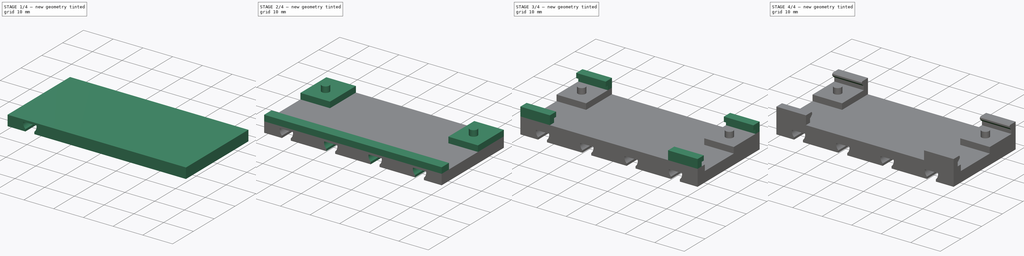
[diagram: build sequence overview — one tinted view per stage of 4, left to right]
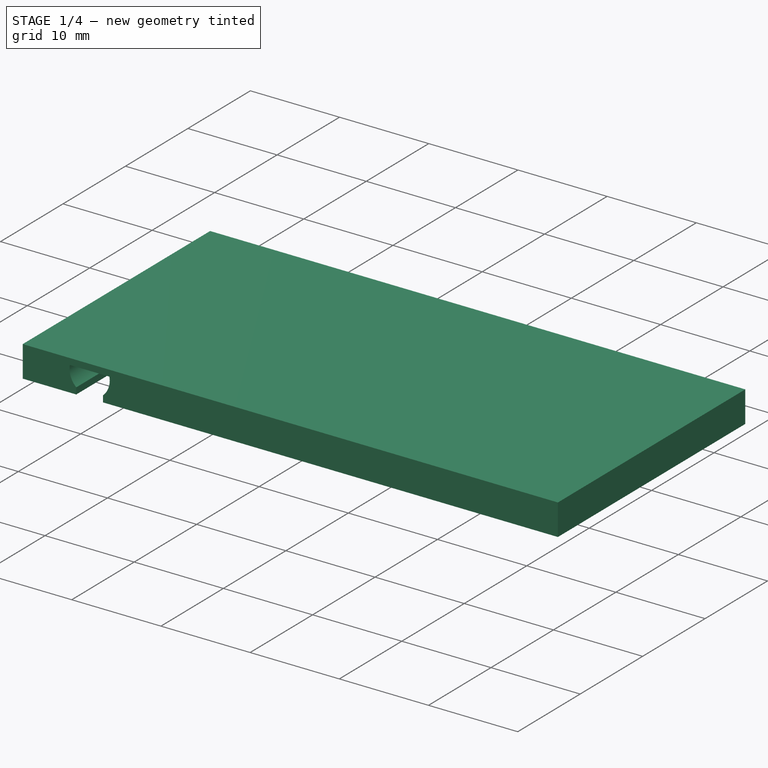
[diagram: stage 1 of 4 — iso view after this stage's code; geometry added in this stage tinted green]
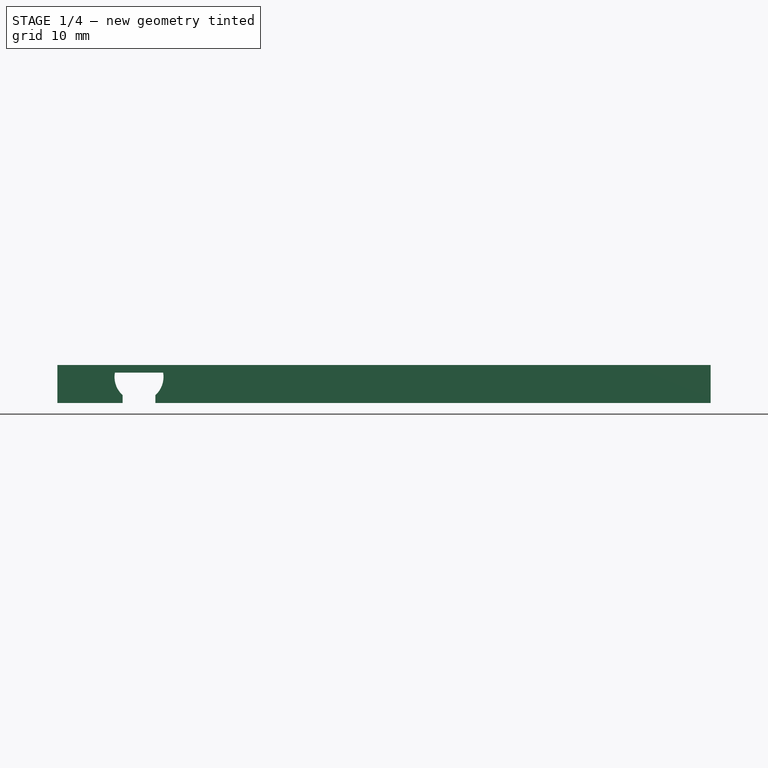
[diagram: stage 1 of 4 — front view after this stage's code; geometry added in this stage tinted green]
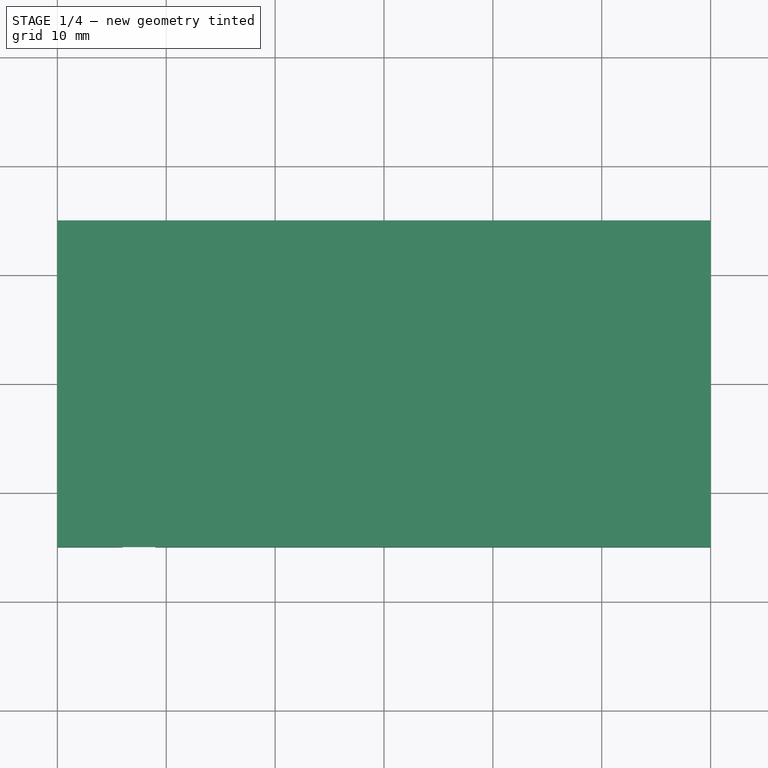
[diagram: stage 1 of 4 — top view after this stage's code; geometry added in this stage tinted green]
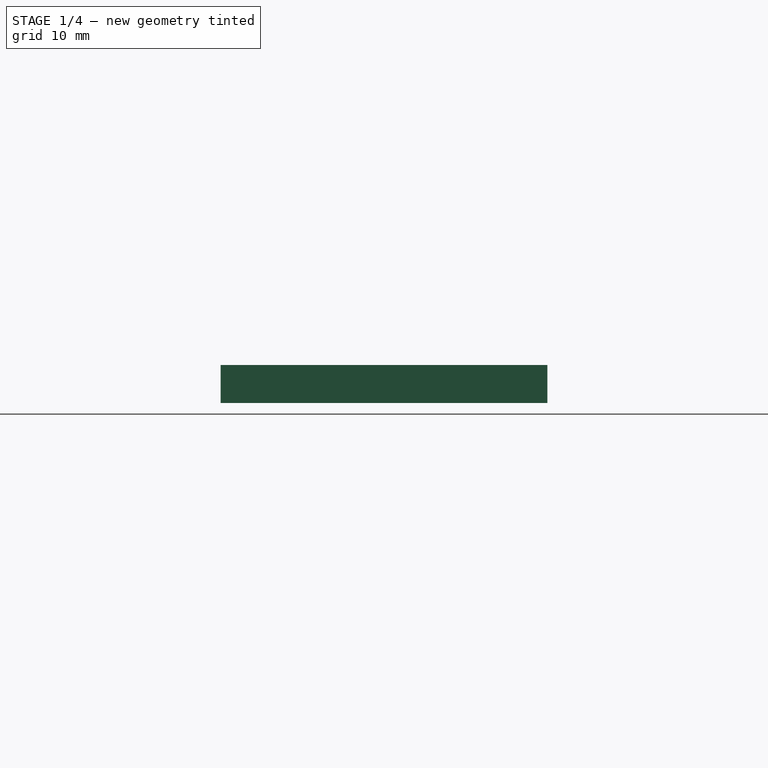
[diagram: stage 1 of 4 — right view after this stage's code; geometry added in this stage tinted green]
FCSTD DOCUMENT  (FreeCAD 0.17R13522 (Git))
Label: breakout_base
License: All rights reserved
LicenseURL: http://en.wikipedia.org/wiki/All_rights_reserved
objects: Sketcher::SketchObject×6, PartDesign::Pad×5, PartDesign::Mirrored×2, PartDesign::Chamfer×2, PartDesign::Pocket×1, PartDesign::LinearPattern×1, PartDesign::MultiTransform×1, PartDesign::Body×1
note: 25 computed .brp shape members not serialized (recipe doc carries the construction recipe); baked Part::Feature solids carry a one-line shape summary decoded from their .brp

FEATURE [Sketcher::SketchObject] Sketch
  MapMode = 5
  Support = -> [XY_Plane]
  sketch-geometry (4):
    g0: LineSegment StartX=-30 StartY=15 StartZ=0 EndX=30 EndY=15 EndZ=0
    g1: LineSegment StartX=30 StartY=15 StartZ=0 EndX=30 EndY=-15 EndZ=0
    g2: LineSegment StartX=30 StartY=-15 StartZ=0 EndX=-30 EndY=-15 EndZ=0
    g3: LineSegment StartX=-30 StartY=-15 StartZ=0 EndX=-30 EndY=15 EndZ=0
  constraints (12):
    c: Coincident(g0,g1)
    c: Coincident(g1,g2)
    c: Coincident(g2,g3)
    c: Coincident(g3,g0)
    c: Horizontal(g0)
    c: Horizontal(g2)
    c: Vertical(g1)
    c: Vertical(g3)
    c: Symmetric(g0,g0,g-2)
    c: Symmetric(g0,g2,g-1)
    c: DistanceY(g3,g3) = 30
    c: DistanceX(g0,g0) = 60
FEATURE [PartDesign::Pad] Pad
  Length = 3.5
  Length2 = 100
  Profile = -> Sketch
  Type = 0
FEATURE [Sketcher::SketchObject] Sketch001
  MapMode = 5
  Placement = pos=(0,-15,0) rot=(1,0,0;1.5708rad)
  Support = -> [Pad]
  sketch-geometry (8):
    g0: LineSegment StartX=-24 StartY=0.722949 StartZ=0 EndX=-24 EndY=0 EndZ=0
    g1: LineSegment StartX=-24 StartY=0 StartZ=0 EndX=-21 EndY=0 EndZ=0
    g2: LineSegment StartX=-21 StartY=0 StartZ=0 EndX=-21 EndY=0.722949 EndZ=0
    g3: ArcOfCircle CenterX=-22.5 CenterY=2.4 CenterZ=0 NormalX=0 NormalY=0 NormalZ=1 AngleXU=0 Radius=2.25 StartAngle=2.96286 EndAngle=3.98266
    g4: ArcOfCircle CenterX=-22.5 CenterY=2.4 CenterZ=0 NormalX=0 NormalY=0 NormalZ=1 AngleXU=0 Radius=2.25 StartAngle=5.44212 EndAngle=6.46191
    g5: LineSegment StartX=-24.7142 StartY=2.8 StartZ=0 EndX=-20.2858 EndY=2.8 EndZ=0
    g6: GeomPoint X=-22.5 Y=0 Z=0
    g7: LineSegment [constr] StartX=-22.5 StartY=2.4 StartZ=0 EndX=-22.5 EndY=0 EndZ=0
  constraints (23):
    c: Vertical(g0)
    c: Coincident(g0,g1)
    c: Horizontal(g1)
    c: Coincident(g1,g2)
    c: Coincident(g3,g0)
    c: Coincident(g4,g3)
    c: Coincident(g4,g2)
    c: Coincident(g5,g3)
    c: Coincident(g5,g4)
    c: Horizontal(g5)
    c: Vertical(g2)
    c: Radius(g4) = 2.25
    c: Equal(g4,g3)
    c: DistanceX(g1,g1) = 3
    c: PointOnObject(g6,g1)
    c: Symmetric(g0,g1,g6)
    c: PointOnObject(g6,g-1)
    c: Coincident(g7,g3)
    c: Coincident(g7,g6)
    c: Vertical(g7)
    c: DistanceY(g7,g7) = 2.4
    c: DistanceY(g0,g3) = 2.8
    c: DistanceX(g6,g-1) = 22.5
FEATURE [PartDesign::Pocket] Pocket
  BaseFeature = -> Pad
  Length = 5
  Length2 = 100
  Profile = -> Sketch001
  Type = 1
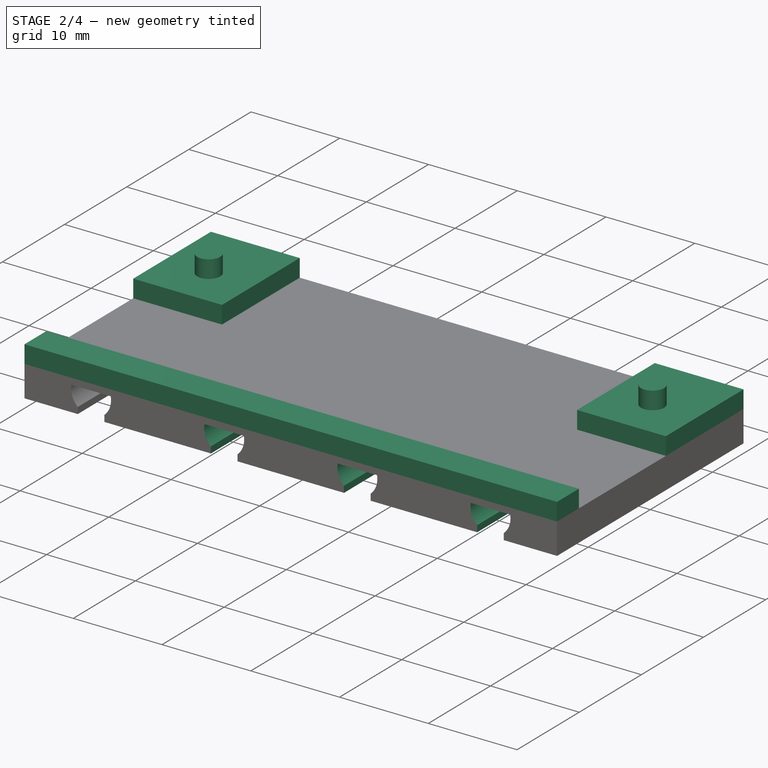
[diagram: stage 2 of 4 — iso view after this stage's code; geometry added in this stage tinted green]
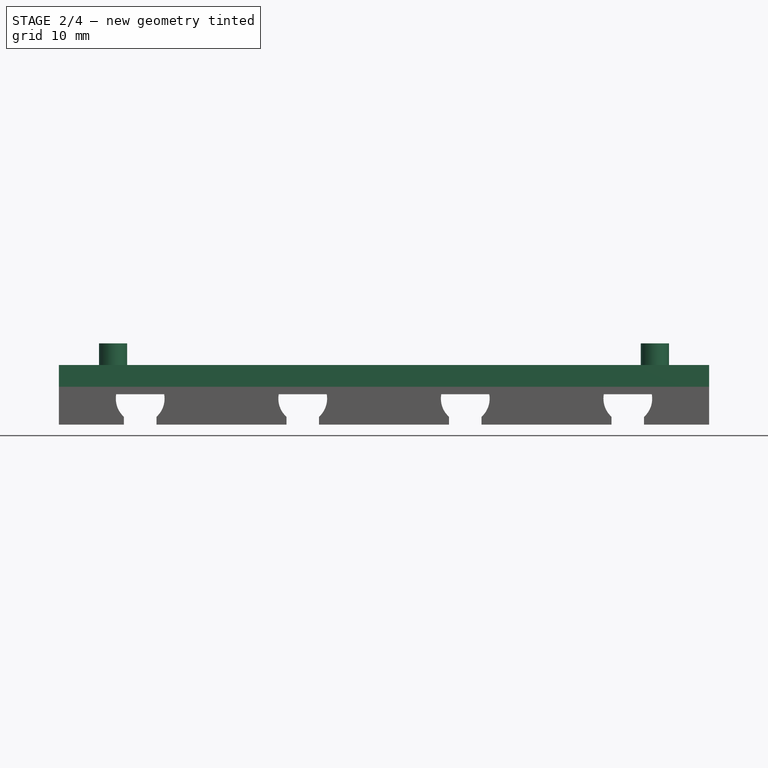
[diagram: stage 2 of 4 — front view after this stage's code; geometry added in this stage tinted green]
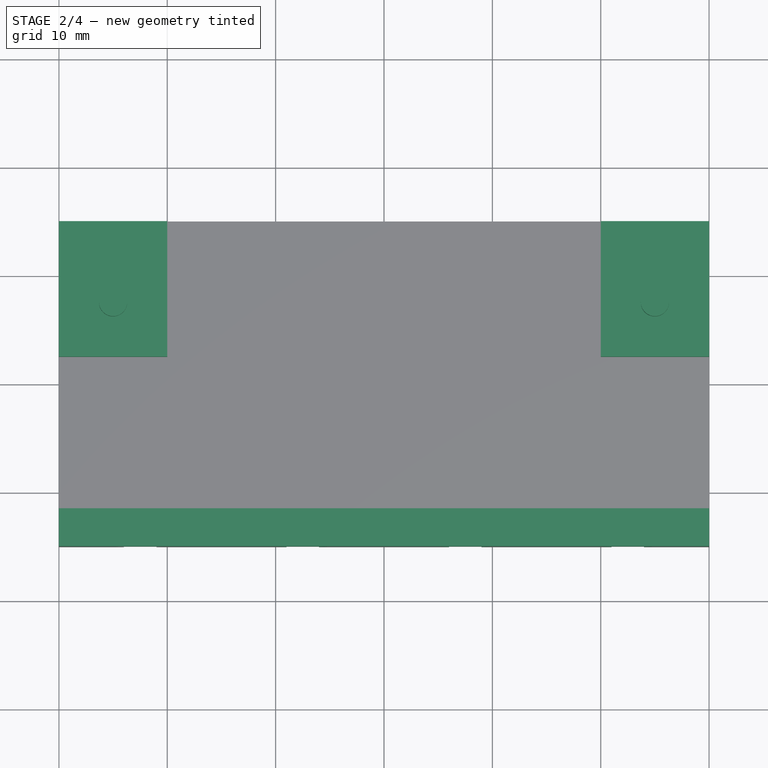
[diagram: stage 2 of 4 — top view after this stage's code; geometry added in this stage tinted green]
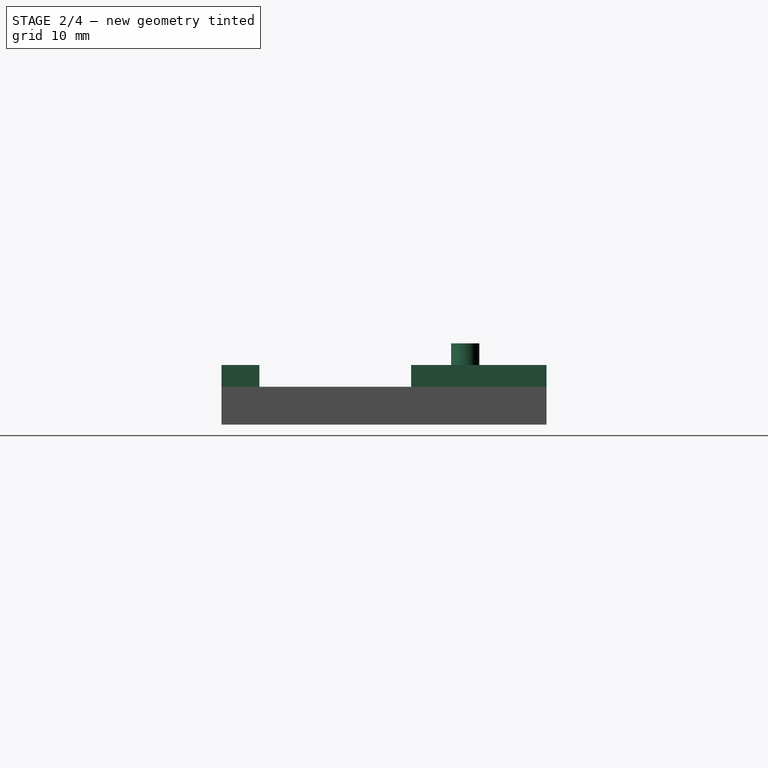
[diagram: stage 2 of 4 — right view after this stage's code; geometry added in this stage tinted green]
FEATURE [PartDesign::LinearPattern] LinearPattern
  BaseFeature = -> Pocket
  Direction = -> Sketch001 [H_Axis]
  Length = 45
  Occurrences = 4
  Originals = -> [Pocket]
FEATURE [Sketcher::SketchObject] Sketch002
  MapMode = 5
  Placement = pos=(0,0,3.5) rot=(0,0,1;0rad)
  Support = -> [LinearPattern]
  sketch-geometry (15):
    g0: LineSegment StartX=-30 StartY=15 StartZ=0 EndX=-20 EndY=15 EndZ=0
    g1: LineSegment StartX=-20 StartY=15 StartZ=0 EndX=-20 EndY=2.5 EndZ=0
    g2: LineSegment StartX=-20 StartY=2.5 StartZ=0 EndX=-30 EndY=2.5 EndZ=0
    g3: LineSegment StartX=-30 StartY=2.5 StartZ=0 EndX=-30 EndY=15 EndZ=0
    g4: LineSegment StartX=-30 StartY=-11.5 StartZ=0 EndX=30 EndY=-11.5 EndZ=0
    g5: LineSegment StartX=30 StartY=-11.5 StartZ=0 EndX=30 EndY=-15 EndZ=0
    g6: LineSegment StartX=30 StartY=-15 StartZ=0 EndX=-30 EndY=-15 EndZ=0
    g7: LineSegment StartX=-30 StartY=-15 StartZ=0 EndX=-30 EndY=-11.5 EndZ=0
    g8: LineSegment StartX=20 StartY=15 StartZ=0 EndX=30 EndY=15 EndZ=0
    g9: LineSegment StartX=30 StartY=15 StartZ=0 EndX=30 EndY=2.5 EndZ=0
    g10: LineSegment StartX=30 StartY=2.5 StartZ=0 EndX=20 EndY=2.5 EndZ=0
    g11: LineSegment StartX=20 StartY=2.5 StartZ=0 EndX=20 EndY=15 EndZ=0
    g12: LineSegment [constr] StartX=-20 StartY=15 StartZ=0 EndX=20 EndY=15 EndZ=0
    g13: LineSegment [constr] StartX=-20 StartY=2.5 StartZ=0 EndX=20 EndY=2.5 EndZ=0
    g14: LineSegment [constr] StartX=30 StartY=2.5 StartZ=0 EndX=30 EndY=-11.5 EndZ=0
  constraints (41):
    c: Coincident(g0,g1)
    c: Coincident(g1,g2)
    c: Coincident(g2,g3)
    c: Coincident(g3,g0)
    c: Horizontal(g0)
    c: Horizontal(g2)
    c: Vertical(g1)
    c: Vertical(g3)
    c: Coincident(g4,g5)
    c: Coincident(g5,g6)
    c: Coincident(g6,g7)
    c: Coincident(g7,g4)
    c: Horizontal(g4)
    c: Horizontal(g6)
    c: Vertical(g5)
    c: Vertical(g7)
    c: Coincident(g8,g9)
    c: Coincident(g9,g10)
    c: Coincident(g10,g11)
    c: Coincident(g11,g8)
    c: Horizontal(g8)
    c: Horizontal(g10)
    c: Vertical(g9)
    c: Vertical(g11)
    c: Symmetric(g6,g5,g-2)
    c: Symmetric(g6,g0,g-1)
    c: Coincident(g12,g0)
    c: Coincident(g12,g8)
    c: Horizontal(g12)
    c: Coincident(g13,g1)
    c: Coincident(g13,g10)
    c: Horizontal(g13)
    c: Symmetric(g0,g8,g-2)
    c: DistanceY(g6,g0) = 30
    c: DistanceX(g0,g8) = 60
    c: Coincident(g14,g9)
    c: Coincident(g14,g4)
    c: Vertical(g14)
    c: DistanceY(g3,g3) = 12.5
    c: DistanceX(g0,g0) = 10
    c: DistanceY(g7,g7) = 3.5
FEATURE [PartDesign::Pad] Pad001
  BaseFeature = -> LinearPattern
  Length = 2
  Length2 = 100
  Profile = -> Sketch002
  Type = 0
FEATURE [Sketcher::SketchObject] Sketch003
  MapMode = 5
  Placement = pos=(0,0,5.5) rot=(0,0,1;0rad)
  Support = -> [Pad001]
  sketch-geometry (2):
    g0: Circle CenterX=-25 CenterY=7.5 CenterZ=0 NormalX=0 NormalY=0 NormalZ=1 AngleXU=0 Radius=1.3
    g1: Circle CenterX=25 CenterY=7.5 CenterZ=0 NormalX=0 NormalY=0 NormalZ=1 AngleXU=0 Radius=1.3
  constraints (5):
    c: Radius(g0) = 1.3
    c: Equal(g0,g1)
    c: Symmetric(g0,g1,g-2)
    c: DistanceX(g0,g-1) = 25
    c: DistanceY(g-1,g0) = 7.5
FEATURE [PartDesign::Pad] Pad002
  BaseFeature = -> Pad001
  Length = 2
  Length2 = 100
  Profile = -> Sketch003
  Type = 0
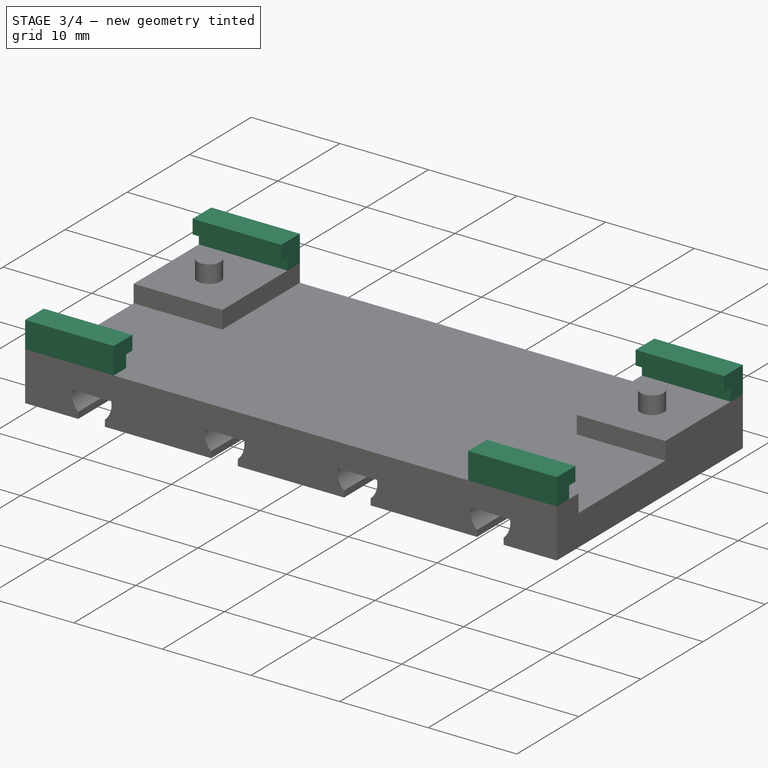
[diagram: stage 3 of 4 — iso view after this stage's code; geometry added in this stage tinted green]
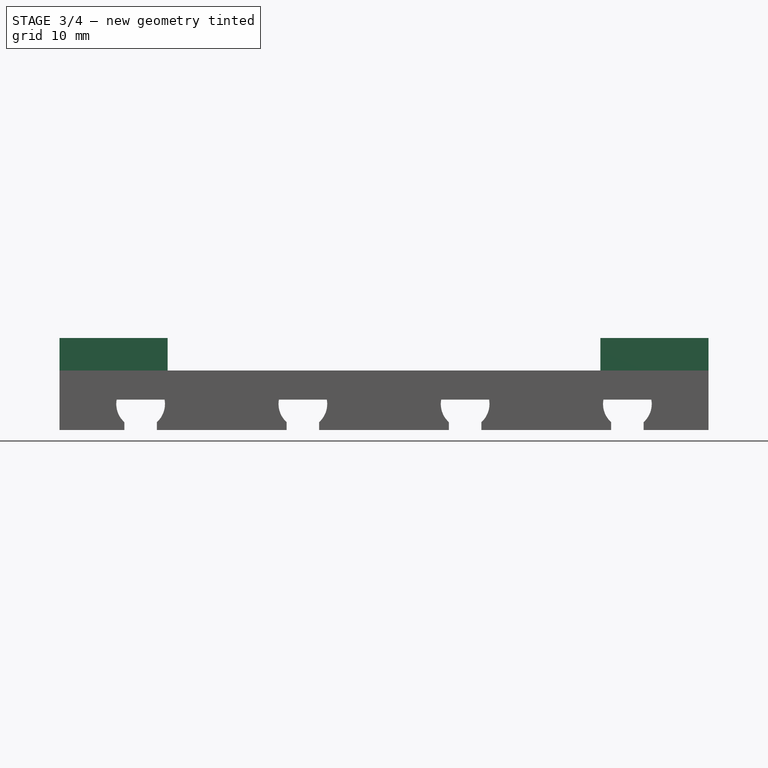
[diagram: stage 3 of 4 — front view after this stage's code; geometry added in this stage tinted green]
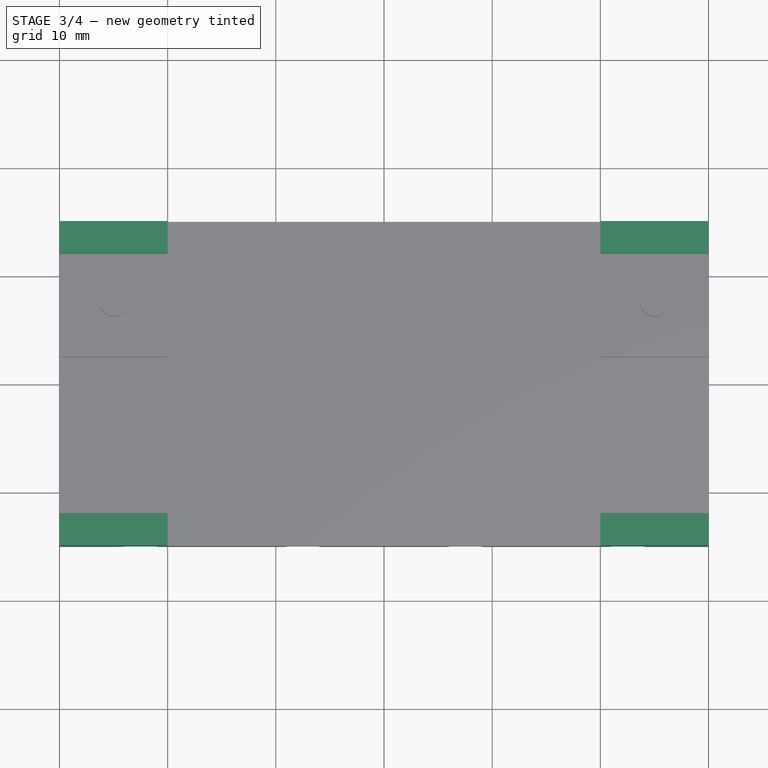
[diagram: stage 3 of 4 — top view after this stage's code; geometry added in this stage tinted green]
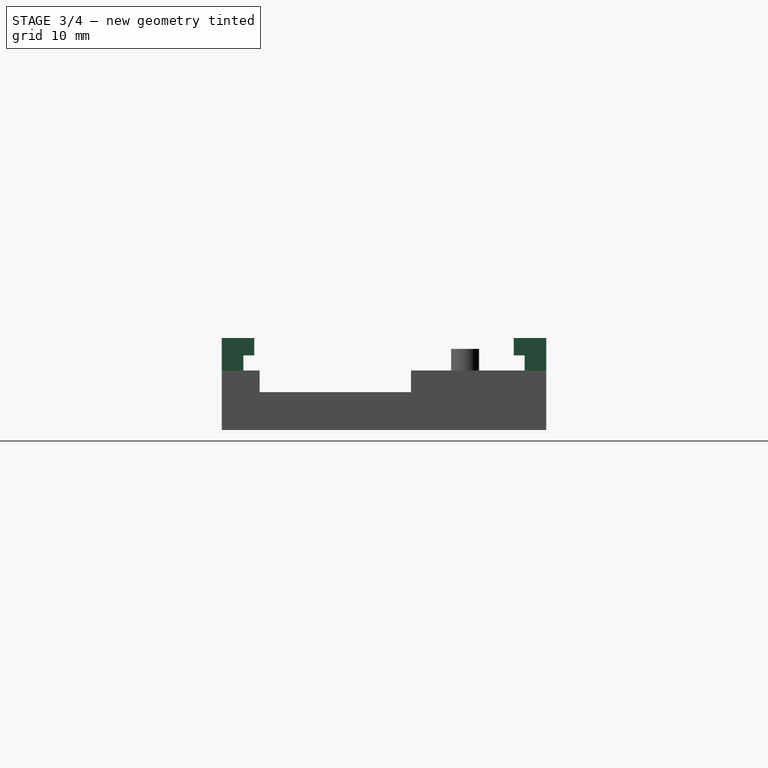
[diagram: stage 3 of 4 — right view after this stage's code; geometry added in this stage tinted green]
FEATURE [Sketcher::SketchObject] Sketch004
  MapMode = 5
  Placement = pos=(0,0,5.5) rot=(0,0,1;0rad)
  Support = -> [Pad002]
  sketch-geometry (24):
    g0: LineSegment StartX=-30 StartY=15 StartZ=0 EndX=-20 EndY=15 EndZ=0
    g1: LineSegment StartX=-20 StartY=15 StartZ=0 EndX=-20 EndY=13 EndZ=0
    g2: LineSegment StartX=-20 StartY=13 StartZ=0 EndX=-30 EndY=13 EndZ=0
    g3: LineSegment StartX=-30 StartY=13 StartZ=0 EndX=-30 EndY=15 EndZ=0
    g4: LineSegment StartX=20 StartY=15 StartZ=0 EndX=30 EndY=15 EndZ=0
    g5: LineSegment StartX=30 StartY=15 StartZ=0 EndX=30 EndY=13 EndZ=0
    g6: LineSegment StartX=30 StartY=13 StartZ=0 EndX=20 EndY=13 EndZ=0
    g7: LineSegment StartX=20 StartY=13 StartZ=0 EndX=20 EndY=15 EndZ=0
    g8: LineSegment StartX=-30 StartY=-13 StartZ=0 EndX=-20 EndY=-13 EndZ=0
    g9: LineSegment StartX=-20 StartY=-13 StartZ=0 EndX=-20 EndY=-15 EndZ=0
    g10: LineSegment StartX=-20 StartY=-15 StartZ=0 EndX=-30 EndY=-15 EndZ=0
    g11: LineSegment StartX=-30 StartY=-15 StartZ=0 EndX=-30 EndY=-13 EndZ=0
    g12: LineSegment StartX=20 StartY=-13 StartZ=0 EndX=30 EndY=-13 EndZ=0
    g13: LineSegment StartX=30 StartY=-13 StartZ=0 EndX=30 EndY=-15 EndZ=0
    g14: LineSegment StartX=30 StartY=-15 StartZ=0 EndX=20 EndY=-15 EndZ=0
    g15: LineSegment StartX=20 StartY=-15 StartZ=0 EndX=20 EndY=-13 EndZ=0
    g16: LineSegment [constr] StartX=-20 StartY=15 StartZ=0 EndX=20 EndY=15 EndZ=0
    g17: LineSegment [constr] StartX=-30 StartY=13 StartZ=0 EndX=-30 EndY=-13 EndZ=0
    g18: LineSegment [constr] StartX=-20 StartY=-15 StartZ=0 EndX=20 EndY=-15 EndZ=0
    g19: LineSegment [constr] StartX=30 StartY=-13 StartZ=0 EndX=30 EndY=13 EndZ=0
    g20: LineSegment [constr] StartX=-20 StartY=13 StartZ=0 EndX=-20 EndY=-13 EndZ=0
    g21: LineSegment [constr] StartX=20 StartY=13 StartZ=0 EndX=20 EndY=-13 EndZ=0
    g22: LineSegment [constr] StartX=20 StartY=-13 StartZ=0 EndX=-20 EndY=-13 EndZ=0
    g23: LineSegment [constr] StartX=-20 StartY=13 StartZ=0 EndX=20 EndY=13 EndZ=0
  constraints (64):
    c: Coincident(g0,g1)
    c: Coincident(g1,g2)
    c: Coincident(g2,g3)
    c: Coincident(g3,g0)
    c: Horizontal(g0)
    c: Horizontal(g2)
    c: Vertical(g1)
    c: Vertical(g3)
    c: Coincident(g4,g5)
    c: Coincident(g5,g6)
    c: Coincident(g6,g7)
    c: Coincident(g7,g4)
    c: Horizontal(g4)
    c: Horizontal(g6)
    c: Vertical(g5)
    c: Vertical(g7)
    c: Coincident(g8,g9)
    c: Coincident(g9,g10)
    c: Coincident(g10,g11)
    c: Coincident(g11,g8)
    c: Horizontal(g8)
    c: Horizontal(g10)
    c: Vertical(g9)
    c: Vertical(g11)
    c: Coincident(g12,g13)
    c: Coincident(g13,g14)
    c: Coincident(g14,g15)
    c: Coincident(g15,g12)
    c: Horizontal(g12)
    c: Horizontal(g14)
    c: Vertical(g13)
    c: Vertical(g15)
    c: Coincident(g16,g0)
    c: Coincident(g16,g4)
    c: Coincident(g17,g2)
    c: Coincident(g17,g8)
    c: Vertical(g17)
    c: Coincident(g18,g9)
    c: Coincident(g18,g14)
    c: Horizontal(g18)
    c: Coincident(g19,g12)
    c: Coincident(g19,g5)
    c: Vertical(g19)
    c: Symmetric(g0,g4,g-2)
    c: Symmetric(g0,g4,g-2)
    c: Coincident(g20,g1)
    c: Coincident(g20,g8)
    c: Vertical(g20)
    c: Coincident(g21,g6)
    c: Coincident(g21,g12)
    c: Vertical(g21)
    c: Coincident(g22,g12)
    c: Coincident(g22,g8)
    c: Horizontal(g22)
    c: Coincident(g23,g1)
    c: Coincident(g23,g6)
    c: Horizontal(g23)
    c: Symmetric(g0,g10,g-1)
    c: Symmetric(g2,g8,g-1)
    c: DistanceX(g0,g4) = 60
    c: DistanceY(g0,g4) = 0
    c: DistanceY(g10,g0) = 30
    c: DistanceY(g3,g3) = 2
    c: DistanceX(g0,g0) = 10
FEATURE [PartDesign::Pad] Pad003
  BaseFeature = -> Pad002
  Length = 3
  Length2 = 100
  Profile = -> Sketch004
  Type = 0
FEATURE [Sketcher::SketchObject] Sketch005
  MapMode = 5
  Placement = pos=(0,13,0) rot=(1,0,0;1.5708rad)
  Support = -> [Pad003]
  sketch-geometry (4):
    g0: LineSegment StartX=-30 StartY=8.5 StartZ=0 EndX=-20 EndY=8.5 EndZ=0
    g1: LineSegment StartX=-20 StartY=8.5 StartZ=0 EndX=-20 EndY=6.9 EndZ=0
    g2: LineSegment StartX=-20 StartY=6.9 StartZ=0 EndX=-30 EndY=6.9 EndZ=0
    g3: LineSegment StartX=-30 StartY=6.9 StartZ=0 EndX=-30 EndY=8.5 EndZ=0
  constraints (12):
    c: Coincident(g0,g1)
    c: Coincident(g1,g2)
    c: Coincident(g2,g3)
    c: Coincident(g3,g0)
    c: Horizontal(g0)
    c: Horizontal(g2)
    c: Vertical(g1)
    c: Vertical(g3)
    c: DistanceX(g0,g0) = 10
    c: DistanceY(g3,g3) = 1.6
    c: DistanceY(g-1,g0) = 8.5
    c: DistanceX(g0,g-1) = 30
FEATURE [PartDesign::Pad] Pad004
  BaseFeature = -> Pad003
  Length = 1
  Length2 = 100
  Profile = -> Sketch005
  Type = 0
FEATURE [PartDesign::Mirrored] Mirrored
  MirrorPlane = -> Sketch005 [V_Axis]
FEATURE [PartDesign::Mirrored] Mirrored001
  MirrorPlane = -> XZ_Plane
FEATURE [PartDesign::MultiTransform] MultiTransform
  BaseFeature = -> Pad004
  Originals = -> [Pad004]
  Transformations = -> [Mirrored,Mirrored001]
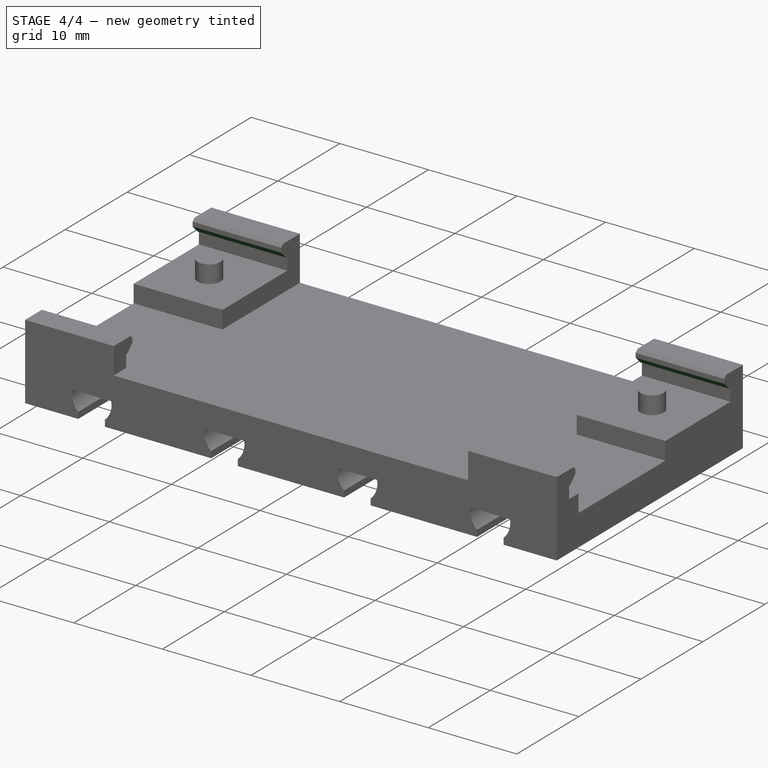
[diagram: stage 4 of 4 — iso view after this stage's code; geometry added in this stage tinted green]
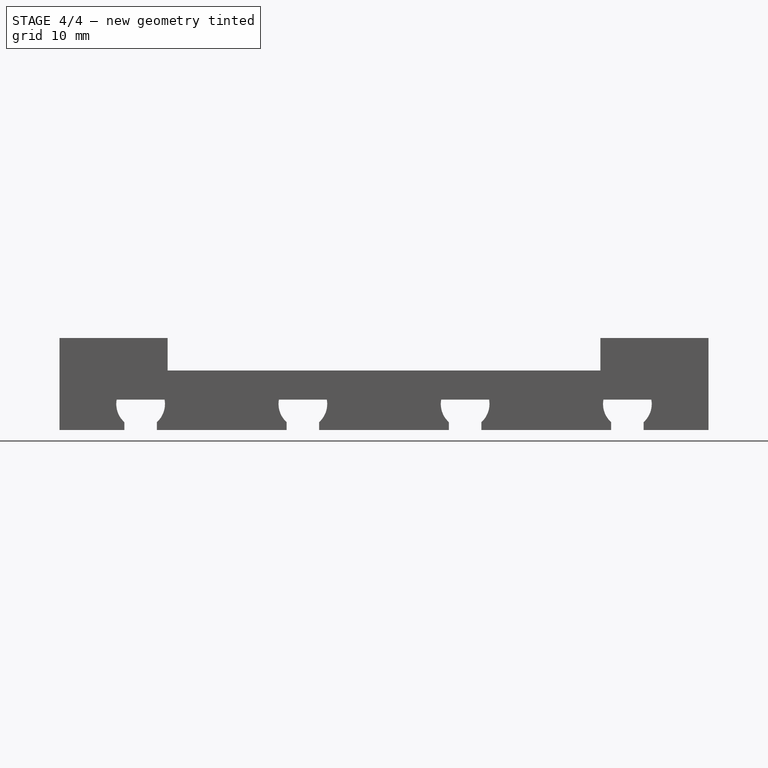
[diagram: stage 4 of 4 — front view after this stage's code; geometry added in this stage tinted green]
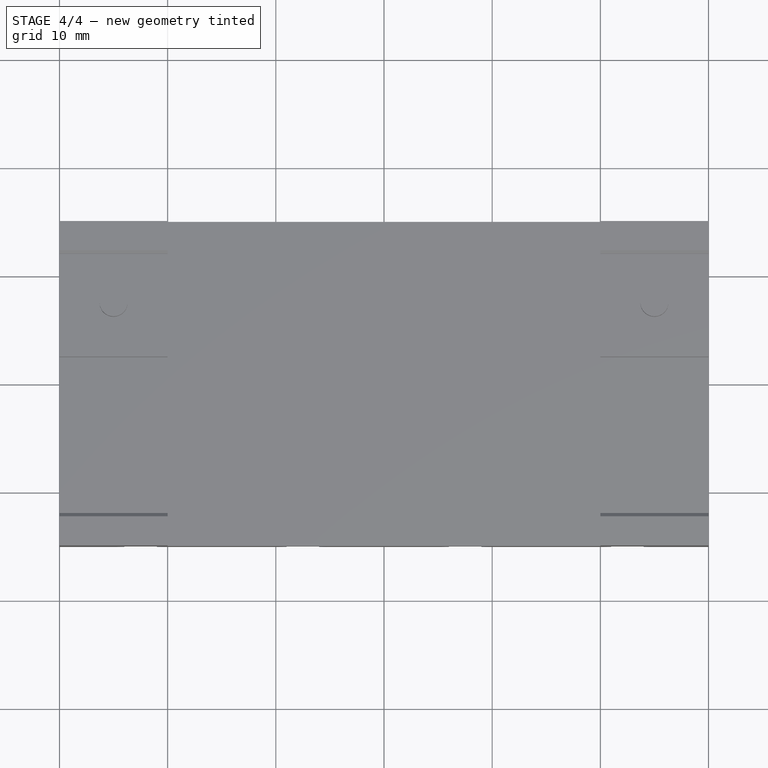
[diagram: stage 4 of 4 — top view after this stage's code; geometry added in this stage tinted green]
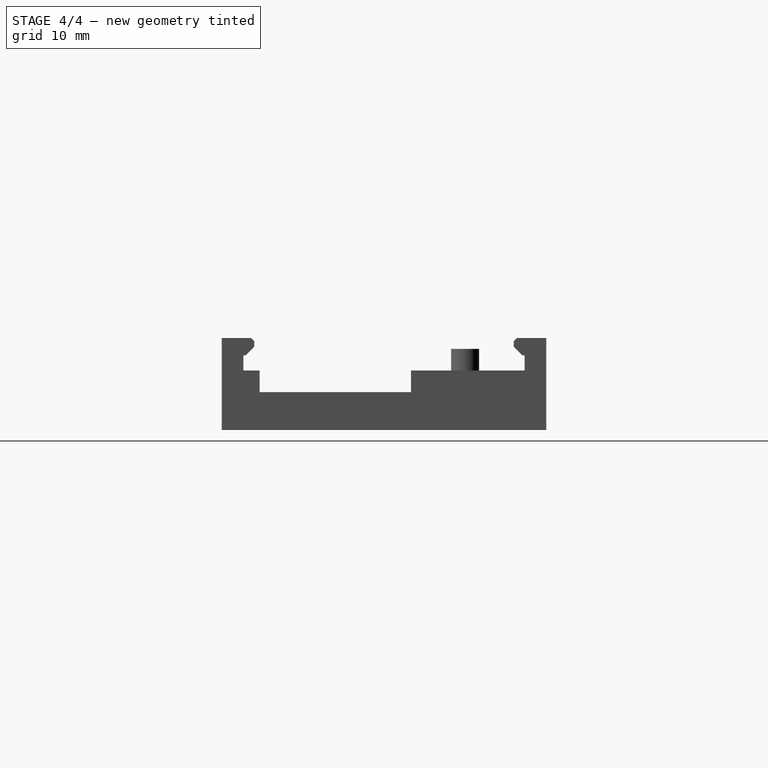
[diagram: stage 4 of 4 — right view after this stage's code; geometry added in this stage tinted green]
FEATURE [PartDesign::Chamfer] Chamfer
  Base = -> MultiTransform [Edge206,Edge212,Edge214,Edge204]
  BaseFeature = -> MultiTransform
  Size = 0.8
FEATURE [PartDesign::Chamfer] Chamfer001
  Base = -> Chamfer [Edge16,Edge220,Edge215,Edge226]
  BaseFeature = -> Chamfer
  Size = 0.3
FEATURE [PartDesign::Body] Body
  Group = -> [Sketch,Pad,Sketch001,Pocket,LinearPattern,Sketch002,Pad001,Sketch003,Pad002,Sketch004,Pad003,Sketch005,Pad004,MultiTransform,Mirrored,Mirrored001,Chamfer,Chamfer001]
  Origin = -> Origin
  Tip = -> Chamfer001
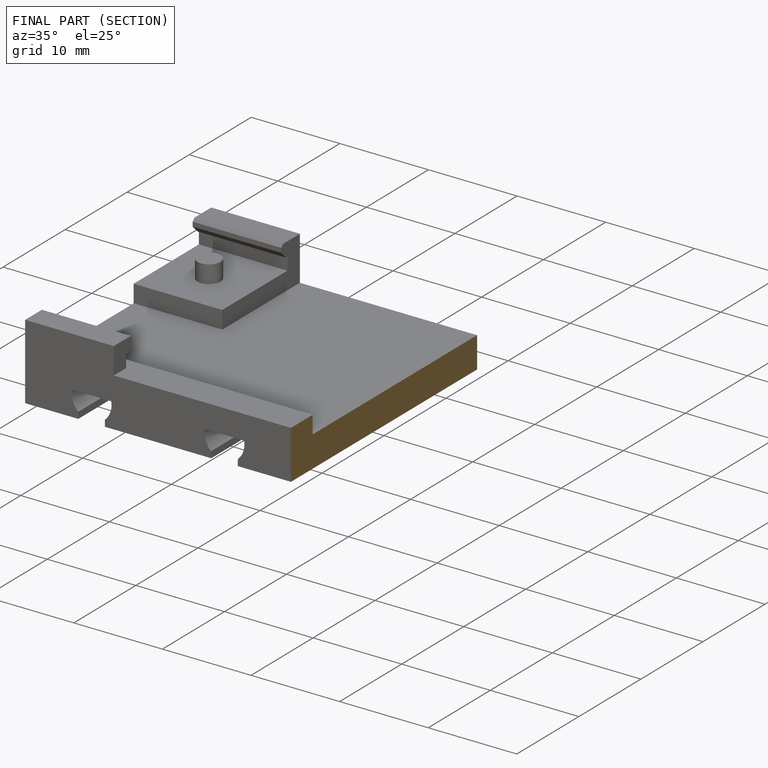
[diagram: finished part — half-section view (interior)]
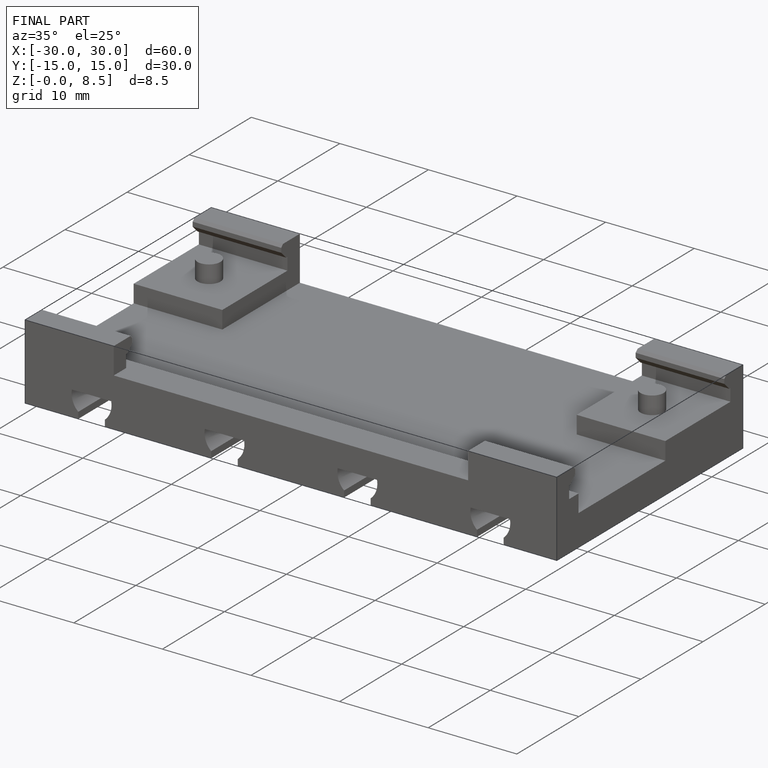
[diagram: finished part — iso view with bounding-box wireframe]
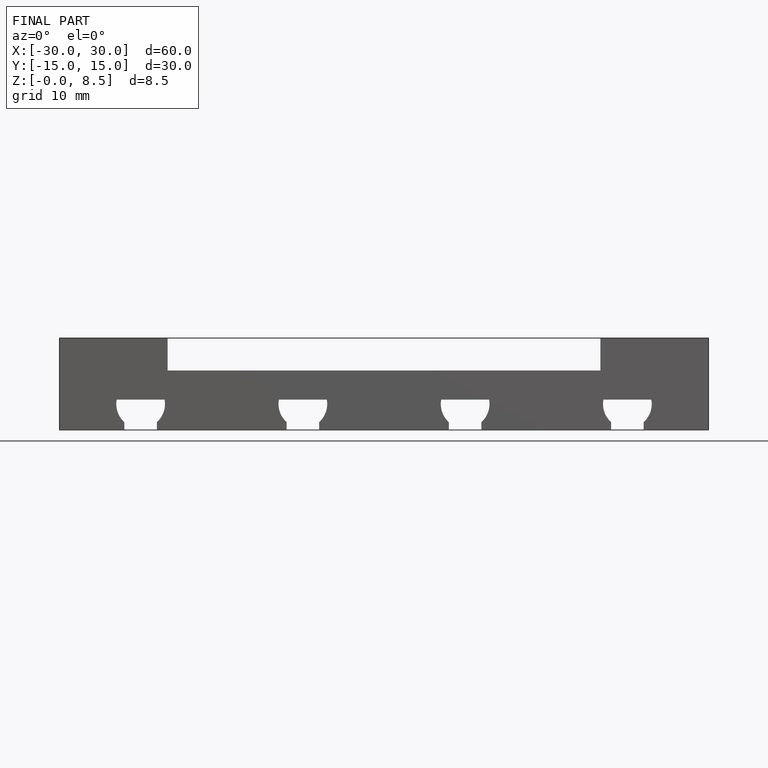
[diagram: finished part — front view with bounding-box wireframe]
